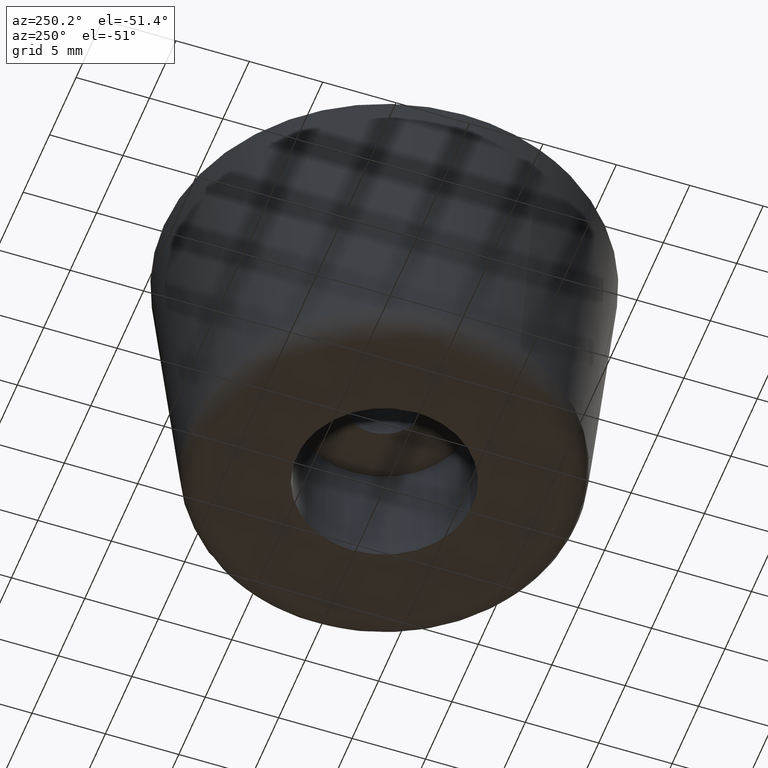
[diagram: clean part render]
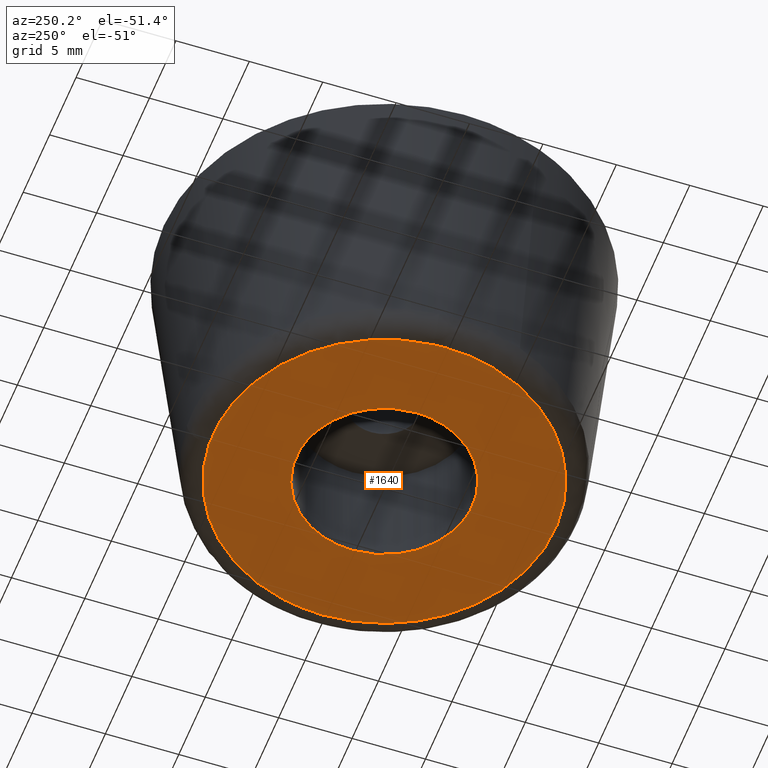
[diagram: same view with one face highlighted and labeled with its STEP entity id]
A machine part, auxiliary view. The second image highlights one B-rep face of the part: STEP entity #1640.
In plain terms, the highlighted face is a freeform B-spline surface patch.
Its self-contained STEP definition (entity closure, byte-faithful):
#523=CARTESIAN_POINT('',(-0.708194922177014,5.958058404555227,1.448108E-015));
#524=VERTEX_POINT('',#523);
#525=CARTESIAN_POINT('',(6.0,0.0,0.0));
#526=VERTEX_POINT('',#525);
#527=CARTESIAN_POINT('',(-0.708194922177014,5.958058404555227,1.448108E-015));
#528=CARTESIAN_POINT('',(-0.355339419604000,6.000000000000001,0.0));
#529=CARTESIAN_POINT('',(0.0,6.0,0.0));
#530=CARTESIAN_POINT('',(6.0,6.0,0.0));
#531=CARTESIAN_POINT('',(6.0,0.0,0.0));
#539=(BOUNDED_CURVE()B_SPLINE_CURVE(2,(#527,#528,#529,#530,#531),.UNSPECIFIED.,.F.,.U.)B_SPLINE_CURVE_WITH_KNOTS((3,2,3),(0.229562770949563,0.250000000000000,0.500000000000000),.UNSPECIFIED.)CURVE()GEOMETRIC_REPRESENTATION_ITEM()RATIONAL_B_SPLINE_CURVE((0.956027337171368,0.976056296799159,1.0,0.707106781186548,1.0))REPRESENTATION_ITEM(''));
#540=EDGE_CURVE('',#524,#526,#539,.T.);
#542=CARTESIAN_POINT('',(0.366289338826585,-5.988808906640648,3.788636E-015));
#543=VERTEX_POINT('',#542);
#544=CARTESIAN_POINT('',(6.0,0.0,0.0));
#545=CARTESIAN_POINT('',(6.000000000000001,-5.644238193934905,0.0));
#546=CARTESIAN_POINT('',(0.366289338826585,-5.988808906640647,3.788636E-015));
#554=(BOUNDED_CURVE()B_SPLINE_CURVE(2,(#544,#545,#546),.UNSPECIFIED.,.F.,.U.)B_SPLINE_CURVE_WITH_KNOTS((3,3),(0.500000000000000,0.739333016937291),.UNSPECIFIED.)CURVE()GEOMETRIC_REPRESENTATION_ITEM()RATIONAL_B_SPLINE_CURVE((1.0,0.719603929203609,0.976072158895718))REPRESENTATION_ITEM(''));
#555=EDGE_CURVE('',#526,#543,#554,.T.);
#626=CARTESIAN_POINT('',(-6.0,0.0,0.0));
#627=VERTEX_POINT('',#626);
#628=CARTESIAN_POINT('',(-6.0,0.0,0.0));
#629=CARTESIAN_POINT('',(-6.000000000000002,5.329056600487015,0.0));
#630=CARTESIAN_POINT('',(-0.708194922177014,5.958058404555227,1.448108E-015));
#638=(BOUNDED_CURVE()B_SPLINE_CURVE(2,(#628,#629,#630),.UNSPECIFIED.,.F.,.U.)B_SPLINE_CURVE_WITH_KNOTS((3,3),(0.0,0.229562770949563),.UNSPECIFIED.)CURVE()GEOMETRIC_REPRESENTATION_ITEM()RATIONAL_B_SPLINE_CURVE((1.0,0.731050484387389,0.956027337171368))REPRESENTATION_ITEM(''));
#639=EDGE_CURVE('',#627,#524,#638,.T.);
#673=CARTESIAN_POINT('',(0.366289338826585,-5.988808906640647,3.788636E-015));
#674=CARTESIAN_POINT('',(0.183315627938838,-6.0,0.0));
#675=CARTESIAN_POINT('',(0.0,-6.0,0.0));
#676=CARTESIAN_POINT('',(-6.0,-6.0,0.0));
#677=CARTESIAN_POINT('',(-6.0,0.0,0.0));
#685=(BOUNDED_CURVE()B_SPLINE_CURVE(2,(#673,#674,#675,#676,#677),.UNSPECIFIED.,.F.,.U.)B_SPLINE_CURVE_WITH_KNOTS((3,2,3),(0.739333016937291,0.750000000000000,1.0),.UNSPECIFIED.)CURVE()GEOMETRIC_REPRESENTATION_ITEM()RATIONAL_B_SPLINE_CURVE((0.976072158895718,0.987502851982938,1.0,0.707106781186548,1.0))REPRESENTATION_ITEM(''));
#686=EDGE_CURVE('',#543,#627,#685,.T.);
#1502=CARTESIAN_POINT('',(0.876993764689428,11.609441443112891,-9.937312E-014));
#1503=VERTEX_POINT('',#1502);
#1504=CARTESIAN_POINT('',(11.642519000000000,0.0,0.0));
#1505=VERTEX_POINT('',#1504);
#1506=CARTESIAN_POINT('',(0.876993764689428,11.609441443112884,-9.937312E-014));
#1507=CARTESIAN_POINT('',(11.642519000000000,10.796198311530009,-9.224485E-014));
#1508=CARTESIAN_POINT('',(11.642519000000000,0.0,0.0));
#1516=(BOUNDED_CURVE()B_SPLINE_CURVE(2,(#1506,#1507,#1508),.UNSPECIFIED.,.F.,.U.)B_SPLINE_CURVE_WITH_KNOTS((3,3),(0.263129840739417,0.500000000000000),.UNSPECIFIED.)CURVE()GEOMETRIC_REPRESENTATION_ITEM()RATIONAL_B_SPLINE_CURVE((0.970850634523517,0.722489346453251,1.0))REPRESENTATION_ITEM(''));
#1517=EDGE_CURVE('',#1503,#1505,#1516,.T.);
#1537=CARTESIAN_POINT('',(-11.609441442593070,0.876993764607335,-9.951443E-014));
#1538=VERTEX_POINT('',#1537);
#1552=CARTESIAN_POINT('',(-11.642519000000000,0.0,-9.947598E-014));
#1553=VERTEX_POINT('',#1552);
#1554=CARTESIAN_POINT('',(-11.642519000000000,0.0,-9.947598E-014));
#1555=CARTESIAN_POINT('',(-11.642519000000002,0.439120675119084,-9.947598E-014));
#1556=CARTESIAN_POINT('',(-11.609441442593070,0.876993764607335,-9.951443E-014));
#1564=(BOUNDED_CURVE()B_SPLINE_CURVE(2,(#1554,#1555,#1556),.UNSPECIFIED.,.F.,.U.)B_SPLINE_CURVE_WITH_KNOTS((3,3),(0.0,0.013129840738158),.UNSPECIFIED.)CURVE()GEOMETRIC_REPRESENTATION_ITEM()RATIONAL_B_SPLINE_CURVE((1.0,0.984617434734772,0.970850634526157))REPRESENTATION_ITEM(''));
#1565=EDGE_CURVE('',#1553,#1538,#1564,.T.);
#1567=CARTESIAN_POINT('',(11.642519000000000,0.0,0.0));
#1568=CARTESIAN_POINT('',(11.642518999999998,-11.642518999999998,-9.947598E-014));
#1569=CARTESIAN_POINT('',(0.0,-11.642519000000000,-9.947598E-014));
#1570=CARTESIAN_POINT('',(-11.642518999999998,-11.642518999999998,-9.947598E-014));
#1571=CARTESIAN_POINT('',(-11.642519000000000,0.0,-9.947598E-014));
#1579=(BOUNDED_CURVE()B_SPLINE_CURVE(2,(#1567,#1568,#1569,#1570,#1571),.UNSPECIFIED.,.F.,.U.)B_SPLINE_CURVE_WITH_KNOTS((3,2,3),(0.500000000000000,0.750000000000000,1.0),.UNSPECIFIED.)CURVE()GEOMETRIC_REPRESENTATION_ITEM()RATIONAL_B_SPLINE_CURVE((1.0,0.707106781186547,1.0,0.707106781186547,1.0))REPRESENTATION_ITEM(''));
#1580=EDGE_CURVE('',#1505,#1553,#1579,.T.);
#1602=CARTESIAN_POINT('',(-11.609441442593070,0.876993764607335,-9.951443E-014));
#1603=CARTESIAN_POINT('',(-10.796198311609436,11.642518999999998,-9.947598E-014));
#1604=CARTESIAN_POINT('',(0.0,11.642519000000000,-9.947598E-014));
#1605=CARTESIAN_POINT('',(0.439120675161852,11.642519000000007,-9.947598E-014));
#1606=CARTESIAN_POINT('',(0.876993764689428,11.609441443112885,-9.937312E-014));
#1614=(BOUNDED_CURVE()B_SPLINE_CURVE(2,(#1602,#1603,#1604,#1605,#1606),.UNSPECIFIED.,.F.,.U.)B_SPLINE_CURVE_WITH_KNOTS((3,2,3),(0.013129840738158,0.250000000000000,0.263129840739417),.UNSPECIFIED.)CURVE()GEOMETRIC_REPRESENTATION_ITEM()RATIONAL_B_SPLINE_CURVE((0.970850634526157,0.722489346451776,1.0,0.984617434733296,0.970850634523517))REPRESENTATION_ITEM(''));
#1615=EDGE_CURVE('',#1538,#1503,#1614,.T.);
#1623=CARTESIAN_POINT('',(-12.805606602969080,-12.805452247377010,-4.973799E-014));
#1624=CARTESIAN_POINT('',(12.805607227522470,-12.805452247377010,-4.973799E-014));
#1625=CARTESIAN_POINT('',(-12.805606602969080,12.802362669883280,-4.973799E-014));
#1626=CARTESIAN_POINT('',(12.805607227522470,12.802362669883280,-4.973799E-014));
#1627=B_SPLINE_SURFACE_WITH_KNOTS('',1,1,((#1623,#1625),(#1624,#1626)),.UNSPECIFIED.,.F.,.F.,.U.,(2,2),(2,2),(0.0,25.611213830491540),(0.0,25.607814917260281),.UNSPECIFIED.);
#1628=ORIENTED_EDGE('',*,*,#1565,.T.);
#1629=ORIENTED_EDGE('',*,*,#1615,.T.);
#1630=ORIENTED_EDGE('',*,*,#1517,.T.);
#1631=ORIENTED_EDGE('',*,*,#1580,.T.);
#1632=EDGE_LOOP('',(#1628,#1629,#1630,#1631));
#1633=FACE_OUTER_BOUND('',#1632,.T.);
#1634=ORIENTED_EDGE('',*,*,#555,.F.);
#1635=ORIENTED_EDGE('',*,*,#540,.F.);
#1636=ORIENTED_EDGE('',*,*,#639,.F.);
#1637=ORIENTED_EDGE('',*,*,#686,.F.);
#1638=EDGE_LOOP('',(#1634,#1635,#1636,#1637));
#1639=FACE_BOUND('',#1638,.T.);
#1640=ADVANCED_FACE('',(#1633,#1639),#1627,.F.);